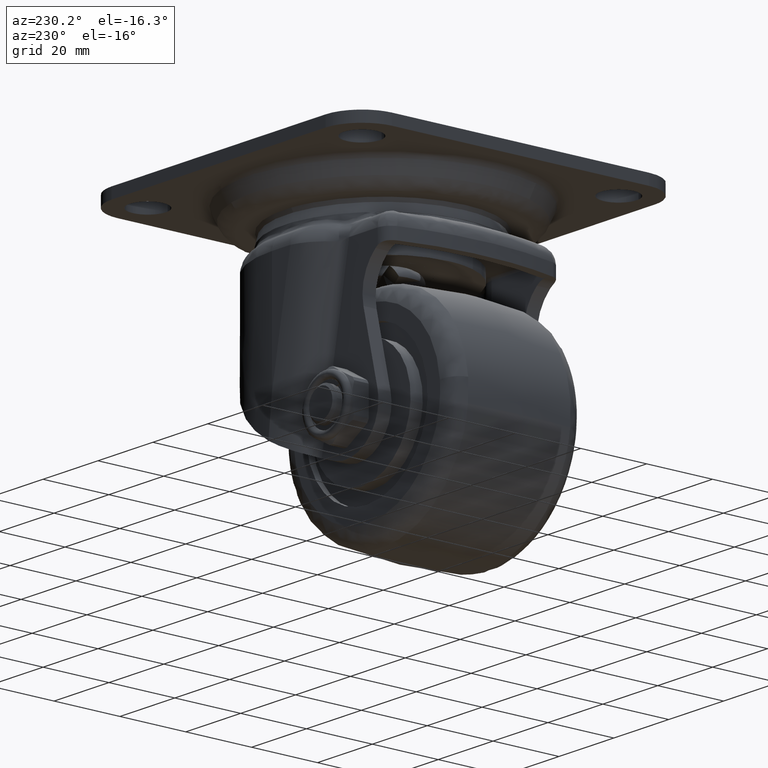
[diagram: clean part render]
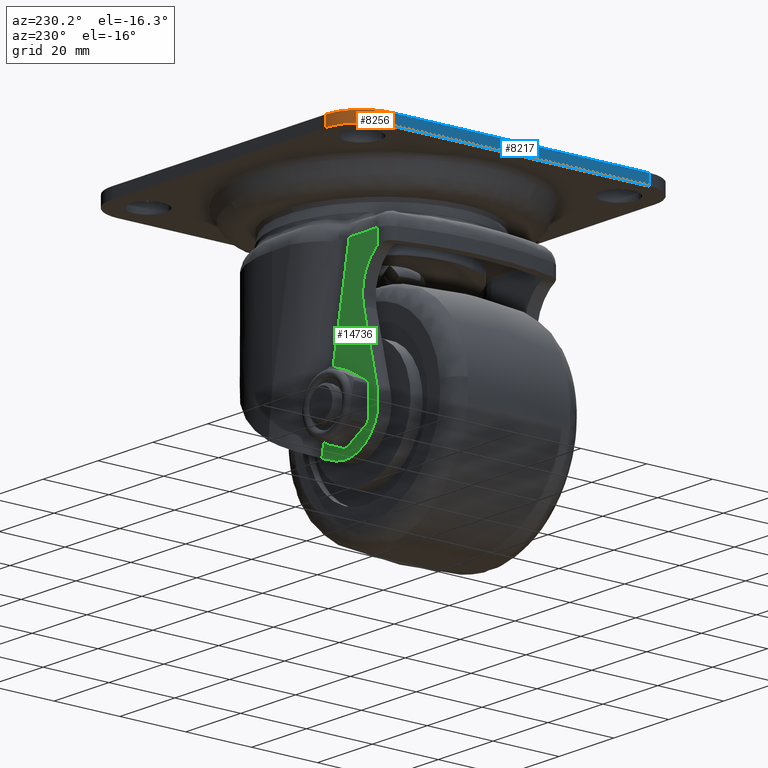
[diagram: same view with three faces highlighted in distinct colors, each labeled with its STEP entity id]
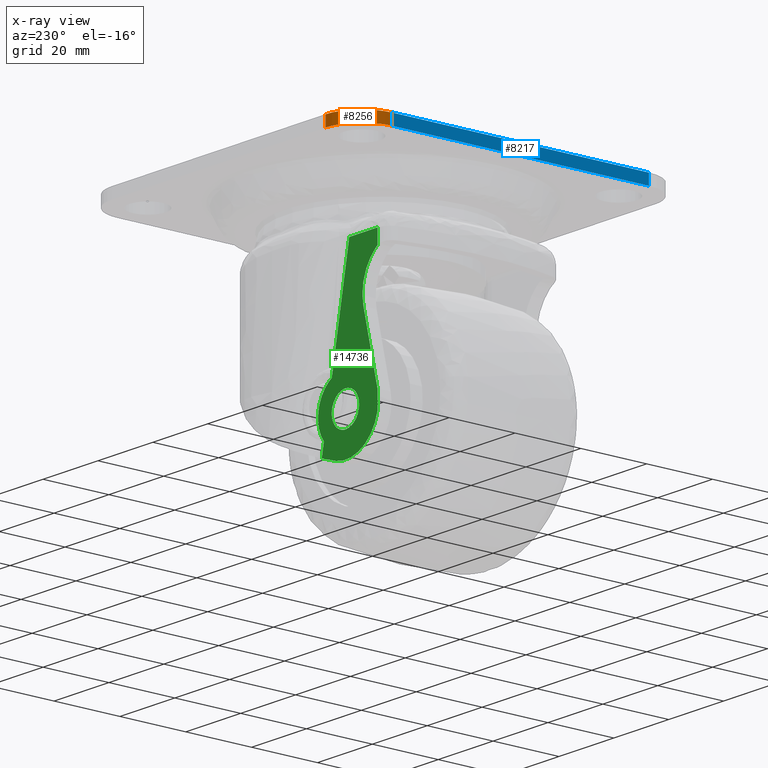
[diagram: x-ray of the same camera — body ghosted, the three highlighted faces saturated]
A machine part, auxiliary view with three faces highlighted in distinct colors.
The next image is the same camera in x-ray (body ghosted, the three faces saturated) — at least one of them is partly hidden behind the body in this view.
Their STEP definitions:

[orange] entity #8256 — the highlighted face is a freeform B-spline surface patch.
#7960=CARTESIAN_POINT('',(-39.0,50.0,0.0));
#7961=VERTEX_POINT('',#7960);
#7967=CARTESIAN_POINT('',(-50.0,39.0,0.0));
#7968=VERTEX_POINT('',#7967);
#7969=CARTESIAN_POINT('',(-39.0,50.0,0.0));
#7970=CARTESIAN_POINT('',(-50.0,50.0,0.0));
#7971=CARTESIAN_POINT('',(-50.0,39.0,0.0));
#7979=(BOUNDED_CURVE()B_SPLINE_CURVE(2,(#7969,#7970,#7971),.UNSPECIFIED.,.F.,.U.)CURVE()GEOMETRIC_REPRESENTATION_ITEM()QUASI_UNIFORM_CURVE()RATIONAL_B_SPLINE_CURVE((1.0,0.707106781186548,1.0))REPRESENTATION_ITEM(''));
#7980=EDGE_CURVE('',#7961,#7968,#7979,.T.);
#8202=CARTESIAN_POINT('',(-50.0,39.0,-3.200000000000000));
#8203=VERTEX_POINT('',#8202);
#8204=CARTESIAN_POINT('',(-50.0,39.0,-3.200000000000000));
#8205=CARTESIAN_POINT('',(-50.0,39.0,0.0));
#8206=QUASI_UNIFORM_CURVE('',1,(#8204,#8205),.UNSPECIFIED.,.F.,.U.);
#8207=EDGE_CURVE('',#8203,#7968,#8206,.T.);
#8218=CARTESIAN_POINT('',(-49.996230574731129,38.712053568613392,-3.280000000000001));
#8219=CARTESIAN_POINT('',(-49.996230574731129,38.712053568613392,0.082000000000000));
#8220=CARTESIAN_POINT('',(-50.313414861828868,50.824832806101924,-3.280000000000000));
#8221=CARTESIAN_POINT('',(-50.313414861828868,50.824832806101924,0.082000000000000));
#8222=CARTESIAN_POINT('',(-38.226479168114174,49.972769273188909,-3.280000000000002));
#8223=CARTESIAN_POINT('',(-38.226479168114174,49.972769273188909,0.082000000000000));
#8231=(BOUNDED_SURFACE()B_SPLINE_SURFACE(1,2,((#8218,#8220,#8222),(#8219,#8221,#8223)),.UNSPECIFIED.,.F.,.F.,.U.)B_SPLINE_SURFACE_WITH_KNOTS((2,2),(3,3),(0.0,3.362000000000001),(0.0,19.482565784972000),.UNSPECIFIED.)GEOMETRIC_REPRESENTATION_ITEM()RATIONAL_B_SPLINE_SURFACE(((1.0,0.670944223154768,0.996392648609106),(1.0,0.670944223154768,0.996392648609106)))REPRESENTATION_ITEM('')SURFACE());
#8232=ORIENTED_EDGE('',*,*,#7980,.F.);
#8233=CARTESIAN_POINT('',(-39.0,50.0,-3.200000000000000));
#8234=VERTEX_POINT('',#8233);
#8235=CARTESIAN_POINT('',(-39.0,50.0,-3.200000000000000));
#8236=CARTESIAN_POINT('',(-39.0,50.0,0.0));
#8237=QUASI_UNIFORM_CURVE('',1,(#8235,#8236),.UNSPECIFIED.,.F.,.U.);
#8238=EDGE_CURVE('',#8234,#7961,#8237,.T.);
#8239=ORIENTED_EDGE('',*,*,#8238,.F.);
#8240=CARTESIAN_POINT('',(-39.0,50.0,-3.200000000000000));
#8241=CARTESIAN_POINT('',(-50.0,50.0,-3.200000000000000));
#8242=CARTESIAN_POINT('',(-50.0,39.0,-3.200000000000000));
#8250=(BOUNDED_CURVE()B_SPLINE_CURVE(2,(#8240,#8241,#8242),.UNSPECIFIED.,.F.,.U.)CURVE()GEOMETRIC_REPRESENTATION_ITEM()QUASI_UNIFORM_CURVE()RATIONAL_B_SPLINE_CURVE((1.0,0.707106781186548,1.0))REPRESENTATION_ITEM(''));
#8251=EDGE_CURVE('',#8234,#8203,#8250,.T.);
#8252=ORIENTED_EDGE('',*,*,#8251,.T.);
#8253=ORIENTED_EDGE('',*,*,#8207,.T.);
#8254=EDGE_LOOP('',(#8232,#8239,#8252,#8253));
#8255=FACE_OUTER_BOUND('',#8254,.T.);
#8256=ADVANCED_FACE('',(#8255),#8231,.T.);

[blue] entity #8217 — the highlighted face is a freeform B-spline surface patch.
#7967=CARTESIAN_POINT('',(-50.0,39.0,0.0));
#7968=VERTEX_POINT('',#7967);
#7982=CARTESIAN_POINT('',(-50.000001000000204,-39.000001900000044,0.0));
#7983=VERTEX_POINT('',#7982);
#7984=CARTESIAN_POINT('',(-50.0,39.0,0.0));
#7985=CARTESIAN_POINT('',(-50.000001000000204,-39.000001900000044,0.0));
#7986=QUASI_UNIFORM_CURVE('',1,(#7984,#7985),.UNSPECIFIED.,.F.,.U.);
#7987=EDGE_CURVE('',#7968,#7983,#7986,.T.);
#8170=CARTESIAN_POINT('',(-50.000001000000204,-39.000001900000044,-3.200000000000000));
#8171=VERTEX_POINT('',#8170);
#8172=CARTESIAN_POINT('',(-50.000001000000204,-39.000001900000044,-3.200000000000000));
#8173=CARTESIAN_POINT('',(-50.000001000000204,-39.000001900000044,0.0));
#8174=QUASI_UNIFORM_CURVE('',1,(#8172,#8173),.UNSPECIFIED.,.F.,.U.);
#8175=EDGE_CURVE('',#8171,#7983,#8174,.T.);
#8196=CARTESIAN_POINT('',(-50.000001000000204,42.896099665055068,-3.359840053876400));
#8197=CARTESIAN_POINT('',(-50.000001000000204,-42.896098078183321,-3.359840053876400));
#8198=CARTESIAN_POINT('',(-50.000001000000204,42.896099665055068,0.159840082486629));
#8199=CARTESIAN_POINT('',(-50.000001000000204,-42.896098078183321,0.159840082486629));
#8200=B_SPLINE_SURFACE_WITH_KNOTS('',1,1,((#8196,#8198),(#8197,#8199)),.UNSPECIFIED.,.F.,.F.,.U.,(2,2),(2,2),(0.0,85.792197743238390),(0.0,3.519680136363030),.UNSPECIFIED.);
#8201=ORIENTED_EDGE('',*,*,#7987,.F.);
#8202=CARTESIAN_POINT('',(-50.0,39.0,-3.200000000000000));
#8203=VERTEX_POINT('',#8202);
#8204=CARTESIAN_POINT('',(-50.0,39.0,-3.200000000000000));
#8205=CARTESIAN_POINT('',(-50.0,39.0,0.0));
#8206=QUASI_UNIFORM_CURVE('',1,(#8204,#8205),.UNSPECIFIED.,.F.,.U.);
#8207=EDGE_CURVE('',#8203,#7968,#8206,.T.);
#8208=ORIENTED_EDGE('',*,*,#8207,.F.);
#8209=CARTESIAN_POINT('',(-50.0,39.0,-3.200000000000000));
#8210=CARTESIAN_POINT('',(-50.000001000000204,-39.000001900000044,-3.200000000000000));
#8211=QUASI_UNIFORM_CURVE('',1,(#8209,#8210),.UNSPECIFIED.,.F.,.U.);
#8212=EDGE_CURVE('',#8203,#8171,#8211,.T.);
#8213=ORIENTED_EDGE('',*,*,#8212,.T.);
#8214=ORIENTED_EDGE('',*,*,#8175,.T.);
#8215=EDGE_LOOP('',(#8201,#8208,#8213,#8214));
#8216=FACE_OUTER_BOUND('',#8215,.T.);
#8217=ADVANCED_FACE('',(#8216),#8200,.T.);

[green] entity #14736 — the highlighted face is a freeform B-spline surface patch.
#9265=CARTESIAN_POINT('',(-24.027345858409820,26.500000000000000,-63.215004576596392));
#9266=VERTEX_POINT('',#9265);
#9272=CARTESIAN_POINT('',(-19.027536243092101,26.500000000000000,-58.171371898744503));
#9273=VERTEX_POINT('',#9272);
#9274=CARTESIAN_POINT('',(-19.027536243092101,26.500000000000000,-58.171371898744503));
#9275=CARTESIAN_POINT('',(-24.027536243092104,26.500000000000000,-58.171371898744496));
#9276=CARTESIAN_POINT('',(-24.027536243092101,26.500000000000000,-63.171371898744503));
#9277=CARTESIAN_POINT('',(-24.027536243092101,26.500000000000007,-63.193188653208018));
#9278=CARTESIAN_POINT('',(-24.027345858409817,26.499999999999996,-63.215004576596385));
#9286=(BOUNDED_CURVE()B_SPLINE_CURVE(2,(#9274,#9275,#9276,#9277,#9278),.UNSPECIFIED.,.F.,.U.)B_SPLINE_CURVE_WITH_KNOTS((3,2,3),(0.500000000000000,0.750000000000000,0.751539894360353),.UNSPECIFIED.)CURVE()GEOMETRIC_REPRESENTATION_ITEM()RATIONAL_B_SPLINE_CURVE((1.0,0.707106781186548,1.0,0.998195901536654,0.996414028041702))REPRESENTATION_ITEM(''));
#9287=EDGE_CURVE('',#9273,#9266,#9286,.T.);
#9289=CARTESIAN_POINT('',(-14.066204450986101,26.500000000000000,-62.550737667812690));
#9290=VERTEX_POINT('',#9289);
#9291=CARTESIAN_POINT('',(-14.066204450986101,26.500000000000000,-62.550737667812697));
#9292=CARTESIAN_POINT('',(-14.614038060978144,26.500000000000007,-58.171371898744511));
#9293=CARTESIAN_POINT('',(-19.027536243092101,26.500000000000000,-58.171371898744503));
#9301=(BOUNDED_CURVE()B_SPLINE_CURVE(2,(#9291,#9292,#9293),.UNSPECIFIED.,.F.,.U.)B_SPLINE_CURVE_WITH_KNOTS((3,3),(0.271473732514615,0.500000000000000),.UNSPECIFIED.)CURVE()GEOMETRIC_REPRESENTATION_ITEM()RATIONAL_B_SPLINE_CURVE((0.954005811520390,0.732264823731127,1.0))REPRESENTATION_ITEM(''));
#9302=EDGE_CURVE('',#9290,#9273,#9301,.T.);
#9352=CARTESIAN_POINT('',(-19.027536243092101,26.500000000000000,-68.171371898744511));
#9353=VERTEX_POINT('',#9352);
#9354=CARTESIAN_POINT('',(-19.027536243092101,26.500000000000000,-68.171371898744511));
#9355=CARTESIAN_POINT('',(-14.027536243092099,26.500000000000000,-68.171371898744511));
#9356=CARTESIAN_POINT('',(-14.027536243092101,26.500000000000000,-63.171371898744503));
#9357=CARTESIAN_POINT('',(-14.027536243092101,26.500000000000004,-62.859850184638027));
#9358=CARTESIAN_POINT('',(-14.066204450986101,26.500000000000000,-62.550737667812697));
#9366=(BOUNDED_CURVE()B_SPLINE_CURVE(2,(#9354,#9355,#9356,#9357,#9358),.UNSPECIFIED.,.F.,.U.)B_SPLINE_CURVE_WITH_KNOTS((3,2,3),(0.0,0.250000000000000,0.271473732514615),.UNSPECIFIED.)CURVE()GEOMETRIC_REPRESENTATION_ITEM()RATIONAL_B_SPLINE_CURVE((1.0,0.707106781186548,1.0,0.974841957455421,0.954005811520390))REPRESENTATION_ITEM(''));
#9367=EDGE_CURVE('',#9353,#9290,#9366,.T.);
#9369=CARTESIAN_POINT('',(-24.027345858409820,26.499999999999996,-63.215004576596385));
#9370=CARTESIAN_POINT('',(-23.984092295353154,26.500000000000007,-68.171371898744525));
#9371=CARTESIAN_POINT('',(-19.027536243092101,26.500000000000000,-68.171371898744511));
#9379=(BOUNDED_CURVE()B_SPLINE_CURVE(2,(#9369,#9370,#9371),.UNSPECIFIED.,.F.,.U.)B_SPLINE_CURVE_WITH_KNOTS((3,3),(0.751539894360354,1.0),.UNSPECIFIED.)CURVE()GEOMETRIC_REPRESENTATION_ITEM()RATIONAL_B_SPLINE_CURVE((0.996414028041699,0.708910879649895,1.0))REPRESENTATION_ITEM(''));
#9380=EDGE_CURVE('',#9266,#9353,#9379,.T.);
#11883=CARTESIAN_POINT('',(-12.485738634844100,26.500000000000000,-22.182966948169000));
#11884=VERTEX_POINT('',#11883);
#12068=CARTESIAN_POINT('',(-22.586699879456450,26.500000000000000,-20.219538978853201));
#12069=VERTEX_POINT('',#12068);
#12070=CARTESIAN_POINT('',(-22.586699879456450,26.500000000000000,-20.219538978853201));
#12071=CARTESIAN_POINT('',(-12.485738634844100,26.500000000000000,-22.182966948169000));
#12072=QUASI_UNIFORM_CURVE('',1,(#12070,#12071),.UNSPECIFIED.,.F.,.U.);
#12073=EDGE_CURVE('',#12069,#11884,#12072,.T.);
#12311=CARTESIAN_POINT('',(-12.485738634844100,26.500000000000000,-55.607980856842687));
#12312=VERTEX_POINT('',#12311);
#12369=CARTESIAN_POINT('',(-12.485738634844100,26.500000000000000,-70.734762940646306));
#12370=VERTEX_POINT('',#12369);
#12388=CARTESIAN_POINT('',(-12.485738634844090,26.500000000000000,-70.734762940646320));
#12389=CARTESIAN_POINT('',(-9.027536243092099,26.500000000000000,-67.743662783340127));
#12390=CARTESIAN_POINT('',(-9.027536243092099,26.500000000000000,-63.171371898744503));
#12391=CARTESIAN_POINT('',(-9.027536243092099,26.500000000000000,-58.599081014148879));
#12392=CARTESIAN_POINT('',(-12.485738634844090,26.500000000000000,-55.607980856842680));
#12400=(BOUNDED_CURVE()B_SPLINE_CURVE(2,(#12388,#12389,#12390,#12391,#12392),.UNSPECIFIED.,.F.,.U.)B_SPLINE_CURVE_WITH_KNOTS((3,2,3),(0.0,0.500000000000000,1.0),.UNSPECIFIED.)CURVE()GEOMETRIC_REPRESENTATION_ITEM()RATIONAL_B_SPLINE_CURVE((1.0,0.909444819883208,1.0,0.909444819883208,1.0))REPRESENTATION_ITEM(''));
#12401=EDGE_CURVE('',#12370,#12312,#12400,.T.);
#12731=CARTESIAN_POINT('',(-30.017101417456349,26.500000000000000,-58.573913345251697));
#12732=VERTEX_POINT('',#12731);
#12738=CARTESIAN_POINT('',(-30.060854581555201,26.500000000000000,-58.670731567518800));
#12739=VERTEX_POINT('',#12738);
#12740=CARTESIAN_POINT('',(-30.017101417456320,26.500000000000000,-58.573913345251711));
#12741=CARTESIAN_POINT('',(-30.039192303710013,26.500000000000004,-58.622225610080925));
#12742=CARTESIAN_POINT('',(-30.060854581555208,26.500000000000000,-58.670731567518800));
#12750=(BOUNDED_CURVE()B_SPLINE_CURVE(2,(#12740,#12741,#12742),.UNSPECIFIED.,.F.,.U.)CURVE()GEOMETRIC_REPRESENTATION_ITEM()QUASI_UNIFORM_CURVE()RATIONAL_B_SPLINE_CURVE((1.0,0.999990201247538,1.0))REPRESENTATION_ITEM(''));
#12751=EDGE_CURVE('',#12732,#12739,#12750,.T.);
#12753=CARTESIAN_POINT('',(-31.096065318074750,26.500000000000000,-63.996429119455897));
#12754=VERTEX_POINT('',#12753);
#12770=CARTESIAN_POINT('',(-17.876679579009849,26.500000000000000,-75.501103269493200));
#12771=VERTEX_POINT('',#12770);
#12772=CARTESIAN_POINT('',(-31.096065318074778,26.500000000000000,-63.996429119455883));
#12773=CARTESIAN_POINT('',(-30.908485457257452,26.500000000000000,-69.198632609576237));
#12774=CARTESIAN_POINT('',(-26.981728720497831,26.500000000000000,-72.616042284625095));
#12775=CARTESIAN_POINT('',(-23.054971983738202,26.500000000000000,-76.033451959673940));
#12776=CARTESIAN_POINT('',(-17.876679579009849,26.500000000000000,-75.501103269493200));
#12784=(BOUNDED_CURVE()B_SPLINE_CURVE(2,(#12772,#12773,#12774,#12775,#12776),.UNSPECIFIED.,.F.,.U.)B_SPLINE_CURVE_WITH_KNOTS((3,2,3),(0.0,0.500000000000000,1.0),.UNSPECIFIED.)CURVE()GEOMETRIC_REPRESENTATION_ITEM()RATIONAL_B_SPLINE_CURVE((1.0,0.917399804592556,1.0,0.917399804592556,1.0))REPRESENTATION_ITEM(''));
#12785=EDGE_CURVE('',#12754,#12771,#12784,.T.);
#12915=CARTESIAN_POINT('',(-23.411070194811600,26.500000000000000,-24.460556595360352));
#12916=VERTEX_POINT('',#12915);
#12938=CARTESIAN_POINT('',(-22.765594639405549,26.500000000000000,-25.130625511681199));
#12939=VERTEX_POINT('',#12938);
#12940=CARTESIAN_POINT('',(-22.765594639405549,26.500000000000000,-25.130625511681199));
#12941=CARTESIAN_POINT('',(-23.062277891202704,26.500000000000000,-24.770492692580692));
#12942=CARTESIAN_POINT('',(-23.411070194811600,26.500000000000000,-24.460556595360352));
#12950=(BOUNDED_CURVE()B_SPLINE_CURVE(2,(#12940,#12941,#12942),.UNSPECIFIED.,.F.,.U.)CURVE()GEOMETRIC_REPRESENTATION_ITEM()QUASI_UNIFORM_CURVE()RATIONAL_B_SPLINE_CURVE((1.0,0.996989805012414,1.0))REPRESENTATION_ITEM(''));
#12951=EDGE_CURVE('',#12939,#12916,#12950,.T.);
#13404=CARTESIAN_POINT('',(-12.485738634844100,26.500000000000000,-74.748329386114108));
#13405=VERTEX_POINT('',#13404);
#13406=CARTESIAN_POINT('',(-17.876679579009849,26.500000000000000,-75.501103269493200));
#13407=CARTESIAN_POINT('',(-15.167541599746107,26.500000000000000,-75.222594825601902));
#13408=CARTESIAN_POINT('',(-12.485738634844100,26.500000000000000,-74.748329386114108));
#13416=(BOUNDED_CURVE()B_SPLINE_CURVE(2,(#13406,#13407,#13408),.UNSPECIFIED.,.F.,.U.)CURVE()GEOMETRIC_REPRESENTATION_ITEM()QUASI_UNIFORM_CURVE()RATIONAL_B_SPLINE_CURVE((1.0,0.999341362783582,1.0))REPRESENTATION_ITEM(''));
#13417=EDGE_CURVE('',#12771,#13405,#13416,.T.);
#13514=CARTESIAN_POINT('',(-20.976578153340149,26.500000000000000,-38.802497307450750));
#13515=VERTEX_POINT('',#13514);
#13521=CARTESIAN_POINT('',(-30.017101417456349,26.500000000000000,-58.573913345251697));
#13522=CARTESIAN_POINT('',(-20.976578153340149,26.500000000000000,-38.802497307450750));
#13523=QUASI_UNIFORM_CURVE('',1,(#13521,#13522),.UNSPECIFIED.,.F.,.U.);
#13524=EDGE_CURVE('',#12732,#13515,#13523,.T.);
#13603=CARTESIAN_POINT('',(-20.976578153340149,26.500000000000000,-38.802497307450750));
#13604=CARTESIAN_POINT('',(-17.594981210266017,26.500000000000004,-31.407016762836470));
#13605=CARTESIAN_POINT('',(-22.765594639405570,26.500000000000000,-25.130625511681220));
#13613=(BOUNDED_CURVE()B_SPLINE_CURVE(2,(#13603,#13604,#13605),.UNSPECIFIED.,.F.,.U.)CURVE()GEOMETRIC_REPRESENTATION_ITEM()QUASI_UNIFORM_CURVE()RATIONAL_B_SPLINE_CURVE((1.0,0.847795041771216,1.0))REPRESENTATION_ITEM(''));
#13614=EDGE_CURVE('',#13515,#12939,#13613,.T.);
#13685=CARTESIAN_POINT('',(-23.411070194811600,26.500000000000000,-24.460556595360352));
#13686=CARTESIAN_POINT('',(-22.586699879456450,26.500000000000000,-20.219538978853201));
#13687=QUASI_UNIFORM_CURVE('',1,(#13685,#13686),.UNSPECIFIED.,.F.,.U.);
#13688=EDGE_CURVE('',#12916,#12069,#13687,.T.);
#14412=CARTESIAN_POINT('',(-31.096065318074750,26.500000000000000,-63.996429119455897));
#14413=CARTESIAN_POINT('',(-30.060854581555201,26.500000000000000,-58.670731567518800));
#14414=QUASI_UNIFORM_CURVE('',1,(#14412,#14413),.UNSPECIFIED.,.F.,.U.);
#14415=EDGE_CURVE('',#12754,#12739,#14414,.T.);
#14703=CARTESIAN_POINT('',(-32.198388509760612,26.500000000000000,-17.455096263470342));
#14704=CARTESIAN_POINT('',(-32.198388509760612,26.500000000000000,-78.328194727607368));
#14705=CARTESIAN_POINT('',(-7.925212656790194,26.500000000000000,-17.455096263470342));
#14706=CARTESIAN_POINT('',(-7.925212656790194,26.500000000000000,-78.328194727607368));
#14707=B_SPLINE_SURFACE_WITH_KNOTS('',1,1,((#14703,#14705),(#14704,#14706)),.UNSPECIFIED.,.F.,.F.,.U.,(2,2),(2,2),(0.0,60.873098464137030),(0.0,24.273175852970411),.UNSPECIFIED.);
#14708=ORIENTED_EDGE('',*,*,#13688,.T.);
#14709=ORIENTED_EDGE('',*,*,#12073,.T.);
#14710=CARTESIAN_POINT('',(-12.485738634844100,26.500000000000000,-22.182966948169000));
#14711=CARTESIAN_POINT('',(-12.485738634844100,26.500000000000000,-55.607980856842687));
#14712=QUASI_UNIFORM_CURVE('',1,(#14710,#14711),.UNSPECIFIED.,.F.,.U.);
#14713=EDGE_CURVE('',#11884,#12312,#14712,.T.);
#14714=ORIENTED_EDGE('',*,*,#14713,.T.);
#14715=ORIENTED_EDGE('',*,*,#12401,.F.);
#14716=CARTESIAN_POINT('',(-12.485738634844100,26.500000000000000,-70.734762940646306));
#14717=CARTESIAN_POINT('',(-12.485738634844100,26.500000000000000,-74.748329386114108));
#14718=QUASI_UNIFORM_CURVE('',1,(#14716,#14717),.UNSPECIFIED.,.F.,.U.);
#14719=EDGE_CURVE('',#12370,#13405,#14718,.T.);
#14720=ORIENTED_EDGE('',*,*,#14719,.T.);
#14721=ORIENTED_EDGE('',*,*,#13417,.F.);
#14722=ORIENTED_EDGE('',*,*,#12785,.F.);
#14723=ORIENTED_EDGE('',*,*,#14415,.T.);
#14724=ORIENTED_EDGE('',*,*,#12751,.F.);
#14725=ORIENTED_EDGE('',*,*,#13524,.T.);
#14726=ORIENTED_EDGE('',*,*,#13614,.T.);
#14727=ORIENTED_EDGE('',*,*,#12951,.T.);
#14728=EDGE_LOOP('',(#14708,#14709,#14714,#14715,#14720,#14721,#14722,#14723,#14724,#14725,#14726,#14727));
#14729=FACE_OUTER_BOUND('',#14728,.T.);
#14730=ORIENTED_EDGE('',*,*,#9287,.T.);
#14731=ORIENTED_EDGE('',*,*,#9380,.T.);
#14732=ORIENTED_EDGE('',*,*,#9367,.T.);
#14733=ORIENTED_EDGE('',*,*,#9302,.T.);
#14734=EDGE_LOOP('',(#14730,#14731,#14732,#14733));
#14735=FACE_BOUND('',#14734,.T.);
#14736=ADVANCED_FACE('',(#14729,#14735),#14707,.F.);